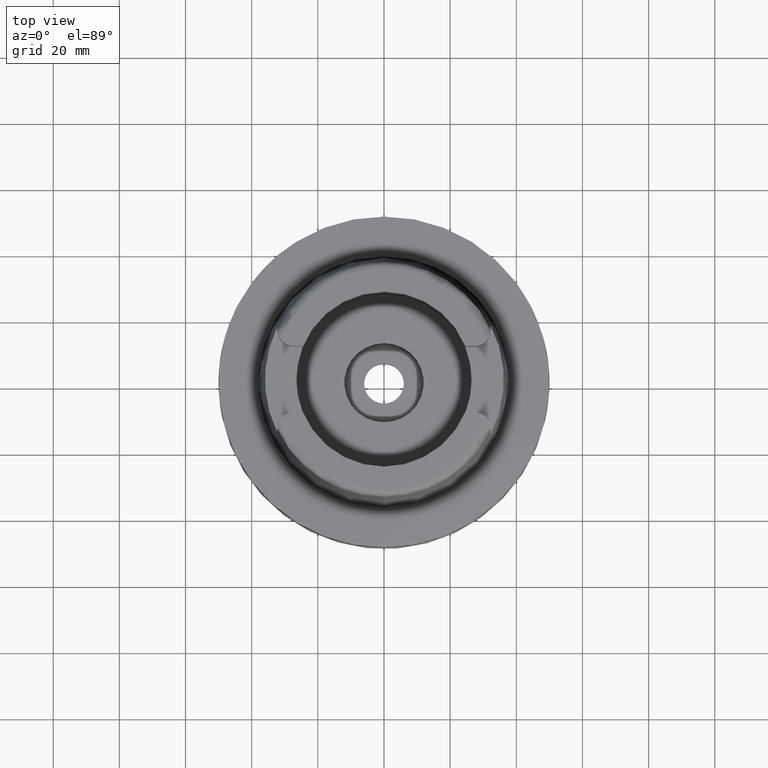
[diagram: clean part render]
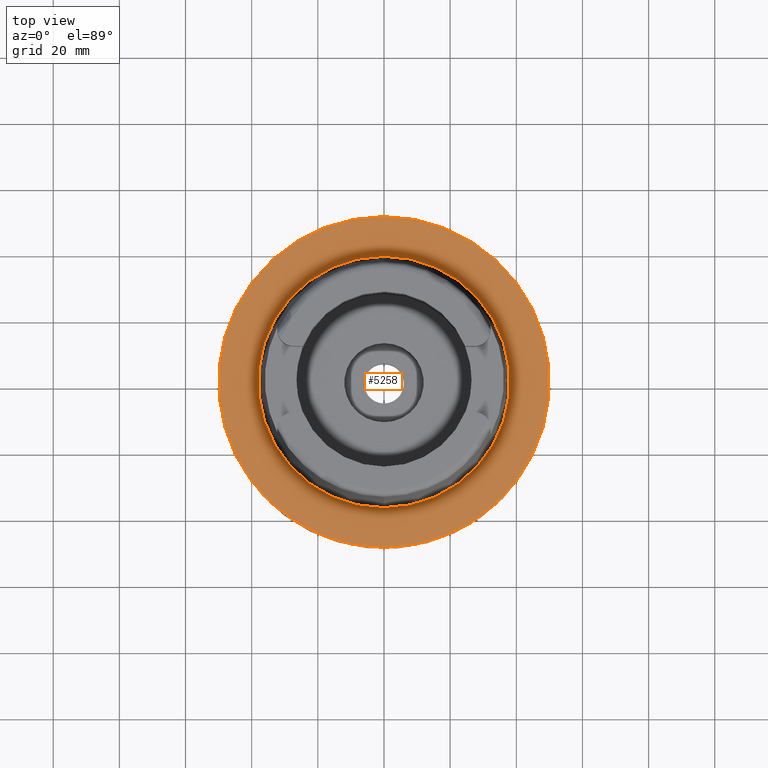
[diagram: same view with one face highlighted and labeled with its STEP entity id]
A machine part, top view. The second image highlights one B-rep face of the part: STEP entity #5258.
In plain terms, the highlighted planar face has unit normal (0, 0, 1).
Its self-contained STEP definition (entity closure, byte-faithful):
#106 = DIRECTION ( 'NONE',  ( 0.0000000000000000000, 0.0000000000000000000, 1.000000000000000000 ) ) ;
#136 = CIRCLE ( 'NONE', #4422, 38.00001658251999714 ) ;
#166 = DIRECTION ( 'NONE',  ( 0.0000000000000000000, 0.0000000000000000000, -1.000000000000000000 ) ) ;
#334 = DIRECTION ( 'NONE',  ( 0.0000000000000000000, 1.000000000000000000, 0.0000000000000000000 ) ) ;
#407 = FACE_OUTER_BOUND ( 'NONE', #5103, .T. ) ;
#503 = DIRECTION ( 'NONE',  ( 0.0000000000000000000, -1.000000000000000000, 0.0000000000000000000 ) ) ;
#628 = CARTESIAN_POINT ( 'NONE',  ( 0.0000000000000000000, 38.00001658251999714, 1.023181539494999863E-12 ) ) ;
#680 = EDGE_CURVE ( 'NONE', #2843, #2272, #4133, .T. ) ;
#723 = DIRECTION ( 'NONE',  ( 0.0000000000000000000, 0.0000000000000000000, -1.000000000000000000 ) ) ;
#765 = AXIS2_PLACEMENT_3D ( 'NONE', #3984, #166, #2750 ) ;
#1180 = EDGE_CURVE ( 'NONE', #2272, #2843, #136, .T. ) ;
#1284 = EDGE_CURVE ( 'NONE', #4285, #4775, #3787, .T. ) ;
#1336 = CARTESIAN_POINT ( 'NONE',  ( 0.0000000000000000000, 0.0000000000000000000, 1.023181539494999863E-12 ) ) ;
#1423 = ORIENTED_EDGE ( 'NONE', *, *, #1284, .F. ) ;
#1708 = EDGE_LOOP ( 'NONE', ( #2007, #2577 ) ) ;
#1771 = EDGE_CURVE ( 'NONE', #4775, #4285, #2439, .T. ) ;
#1803 = CARTESIAN_POINT ( 'NONE',  ( 0.0000000000000000000, -50.00000000000000000, 1.136868377215999875E-13 ) ) ;
#1878 = ORIENTED_EDGE ( 'NONE', *, *, #1771, .F. ) ;
#2007 = ORIENTED_EDGE ( 'NONE', *, *, #680, .F. ) ;
#2106 = CARTESIAN_POINT ( 'NONE',  ( 0.0000000000000000000, 0.0000000000000000000, 1.421085471519999843E-14 ) ) ;
#2198 = CARTESIAN_POINT ( 'NONE',  ( 0.0000000000000000000, -38.00001658251999714, 6.110667527536999933E-13 ) ) ;
#2272 = VERTEX_POINT ( 'NONE', #2198 ) ;
#2277 = AXIS2_PLACEMENT_3D ( 'NONE', #2106, #3807, #4170 ) ;
#2439 = CIRCLE ( 'NONE', #5307, 50.00000000000000000 ) ;
#2577 = ORIENTED_EDGE ( 'NONE', *, *, #1180, .F. ) ;
#2622 = AXIS2_PLACEMENT_3D ( 'NONE', #1336, #2695, #3030 ) ;
#2695 = DIRECTION ( 'NONE',  ( 0.0000000000000000000, 0.0000000000000000000, 1.000000000000000000 ) ) ;
#2750 = DIRECTION ( 'NONE',  ( 0.0000000000000000000, -1.000000000000000000, 0.0000000000000000000 ) ) ;
#2843 = VERTEX_POINT ( 'NONE', #628 ) ;
#2977 = CARTESIAN_POINT ( 'NONE',  ( 0.0000000000000000000, 50.00000000000000000, 8.052817671947998165E-14 ) ) ;
#2998 = FACE_BOUND ( 'NONE', #1708, .T. ) ;
#3030 = DIRECTION ( 'NONE',  ( 0.0000000000000000000, 1.000000000000000000, 0.0000000000000000000 ) ) ;
#3373 = CARTESIAN_POINT ( 'NONE',  ( 0.0000000000000000000, 0.0000000000000000000, 1.136868377215999875E-13 ) ) ;
#3724 = PLANE ( 'NONE',  #2277 ) ;
#3787 = CIRCLE ( 'NONE', #765, 50.00000000000000000 ) ;
#3807 = DIRECTION ( 'NONE',  ( 0.0000000000000000000, 0.0000000000000000000, 1.000000000000000000 ) ) ;
#3928 = CARTESIAN_POINT ( 'NONE',  ( 0.0000000000000000000, 0.0000000000000000000, 1.023181539494999863E-12 ) ) ;
#3984 = CARTESIAN_POINT ( 'NONE',  ( 0.0000000000000000000, 0.0000000000000000000, 1.136868377215999875E-13 ) ) ;
#4133 = CIRCLE ( 'NONE', #2622, 38.00001658251999714 ) ;
#4170 = DIRECTION ( 'NONE',  ( 1.000000000000000000, 0.0000000000000000000, 0.0000000000000000000 ) ) ;
#4285 = VERTEX_POINT ( 'NONE', #1803 ) ;
#4422 = AXIS2_PLACEMENT_3D ( 'NONE', #3928, #106, #503 ) ;
#4775 = VERTEX_POINT ( 'NONE', #2977 ) ;
#5103 = EDGE_LOOP ( 'NONE', ( #1878, #1423 ) ) ;
#5258 = ADVANCED_FACE ( 'NONE', ( #407, #2998 ), #3724, .T. ) ;
#5307 = AXIS2_PLACEMENT_3D ( 'NONE', #3373, #723, #334 ) ;